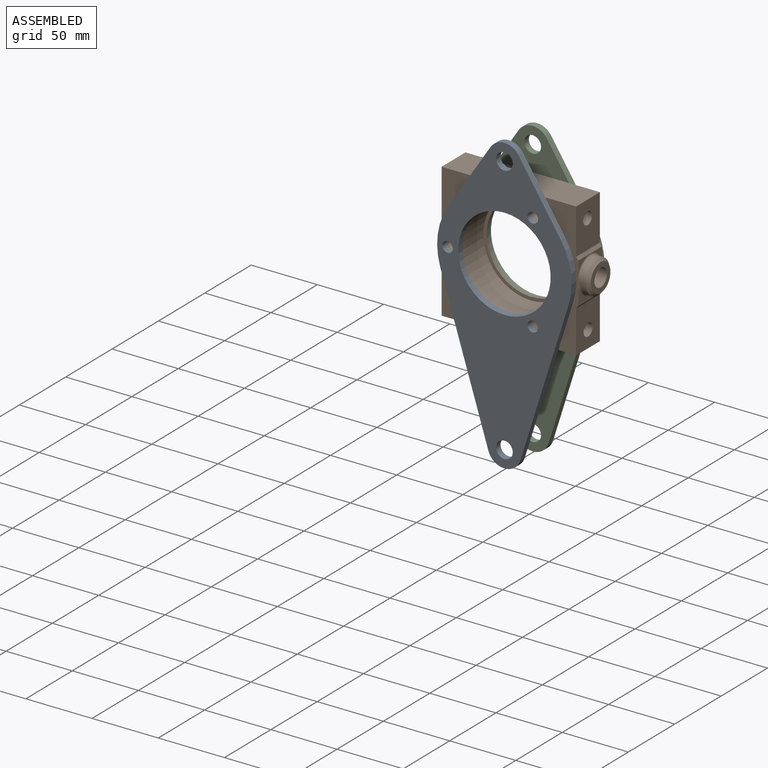
[diagram: assembled view]
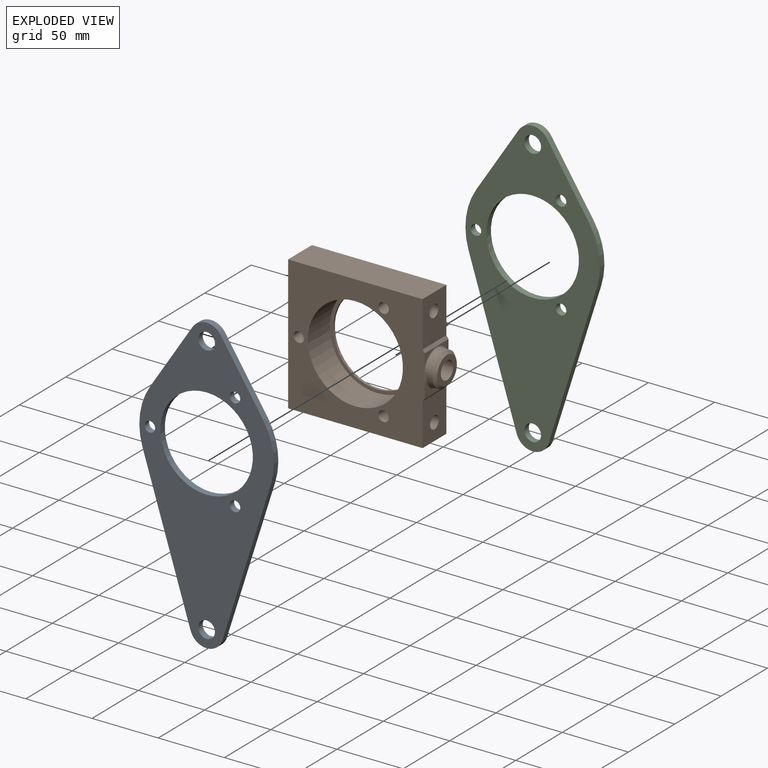
[diagram: exploded view]
GUIDED TOUR — MATED ASSEMBLY (Onshape document af3f4730a27134600b8b0b92, AutoMate assembly af3f4730a27134600b8b0b92_98c0748dc677245c911822a7_bc835501ca015cca2d89b604_default)

This assembly has 3 components, labeled P0..P2 below (a component is one placed occurrence of a part; the same part can appear more than once), held together by 2 mates. A mate is a constraint between two components; its type names the relative motion it leaves free:
  FASTENED — locks the two components together rigidly (no relative motion).
Axis/direction vectors are unit vectors and 'through' points are millimeter coordinates, both in the assembly's world frame.

MATES
  1. FASTENED "Fastened 2": P1 <-> P0, direction (0.000, -1.000, 0.000) through (3.76, -5.80, 3.15) mm
  2. FASTENED "Fastened 1": P1 <-> P2, direction (0.000, 1.000, 0.000) through (3.76, 19.85, 3.15) mm

ASSEMBLY ORDER
  1. P2 — the base component [order verified]
  2. P1 [order verified]
  3. P0 [order verified]
Order-tag legend:
  [order verified] — this step's position reverses a verified removal order: the component was checked to insert without passing through the ones already placed.

Of the 3 components, 2 carry the full construction recipe — the FeatureScript program that regenerates the part's solid from scratch; the rest are supplied as boundary geometry only.
Each toured component is shown spotlighted twice — in the assembled view, then in the exploded view, where a leader line traces a displaced component back to its assembled socket (saturated green if recipe-attached, orange if geometry-only; every other component desaturated gray) — followed by its recipe or geometry summary and the mates that hold it.
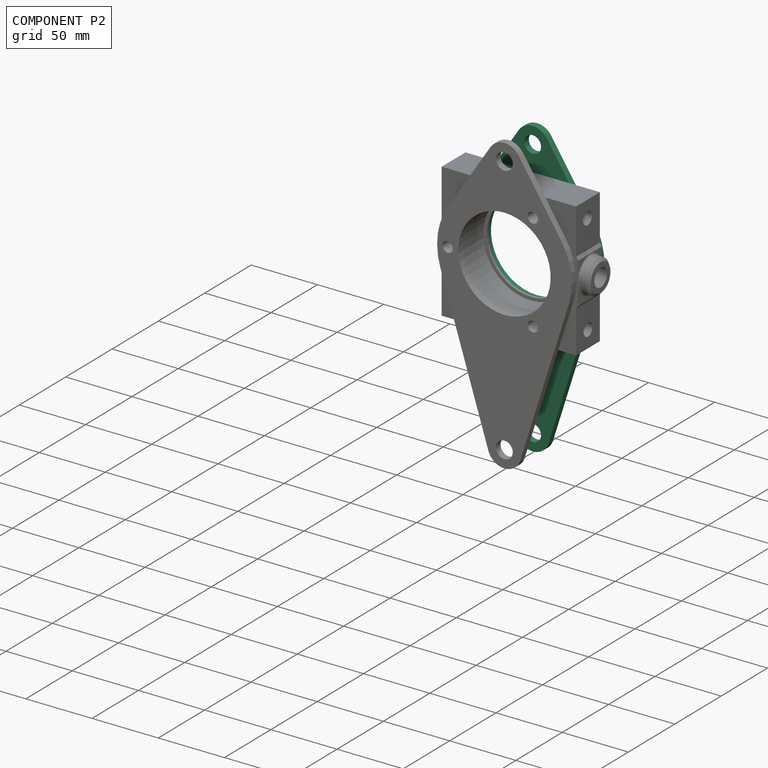
[diagram: component P2 — assembled]
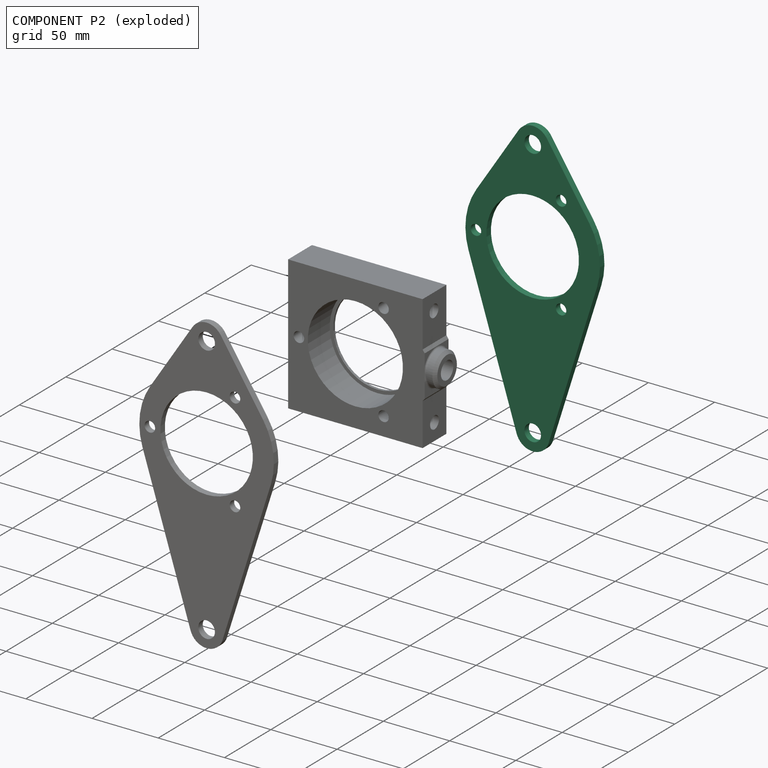
[diagram: component P2 — exploded]
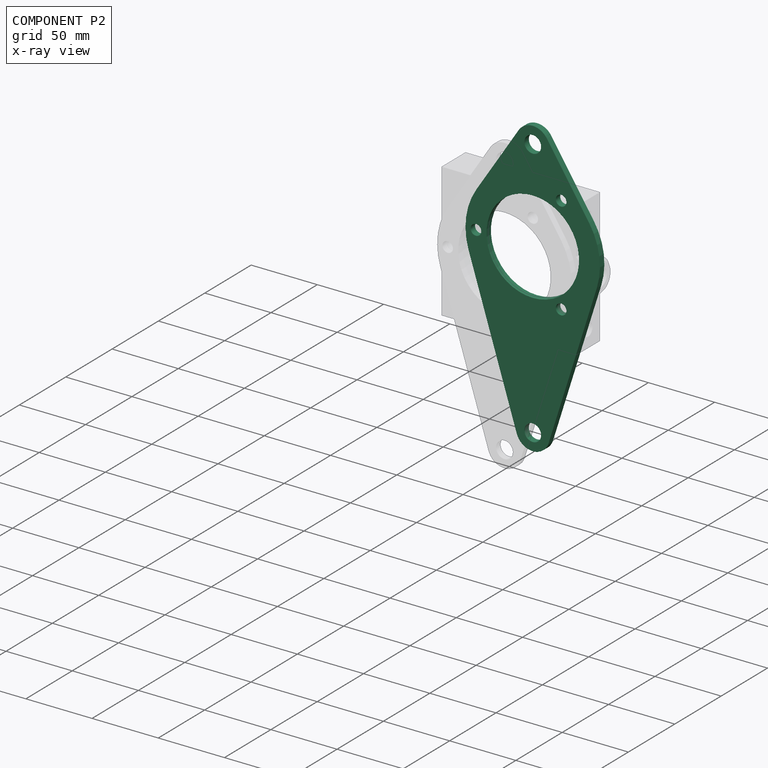
[diagram: component P2 — x-ray view]
COMPONENT P2 — same part as P0 (CADFS 00308056); its construction recipe is shown at P0.
Held by: FASTENED mate "Fastened 1" to P1.
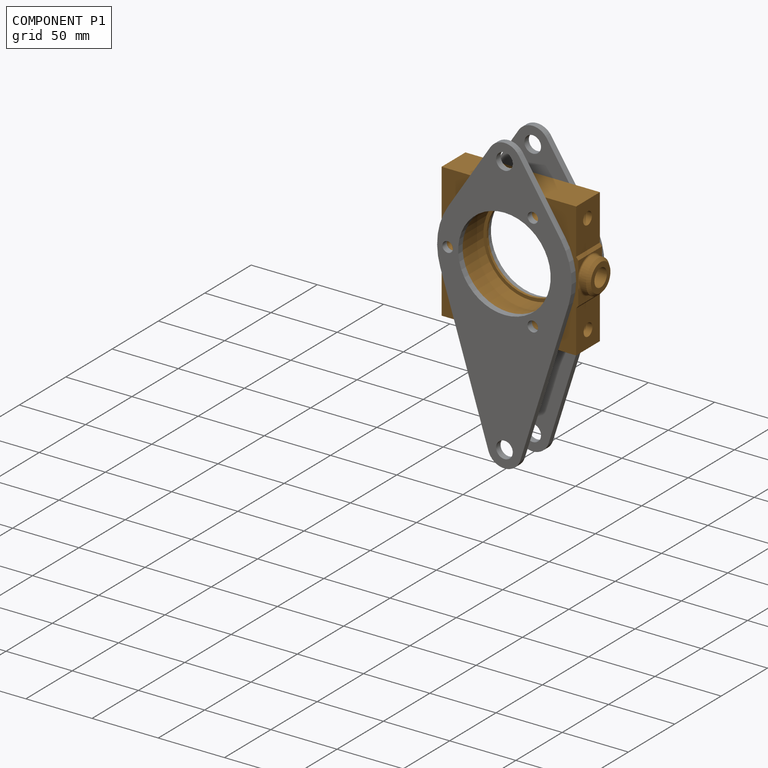
[diagram: component P1 — assembled]
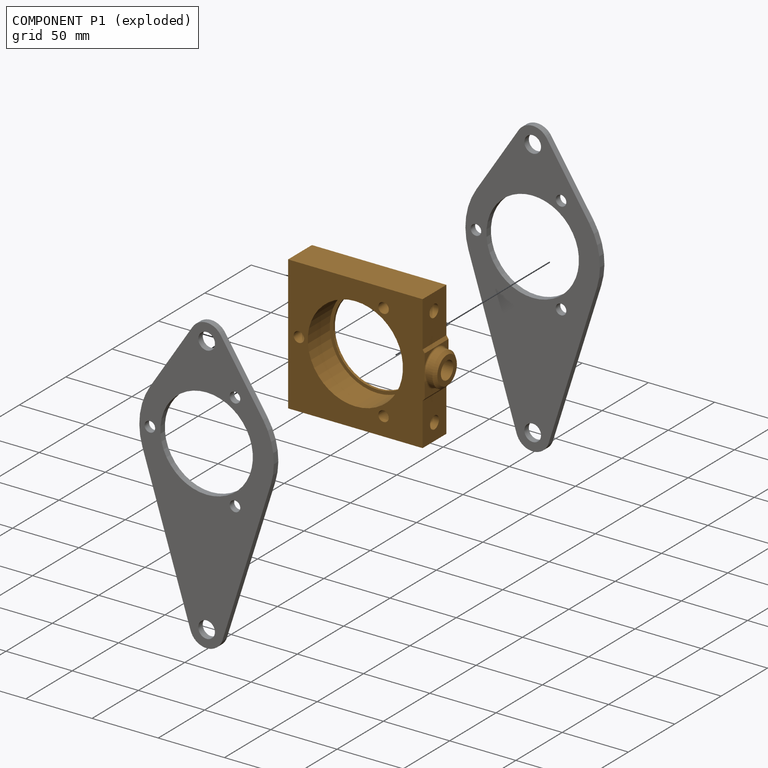
[diagram: component P1 — exploded]
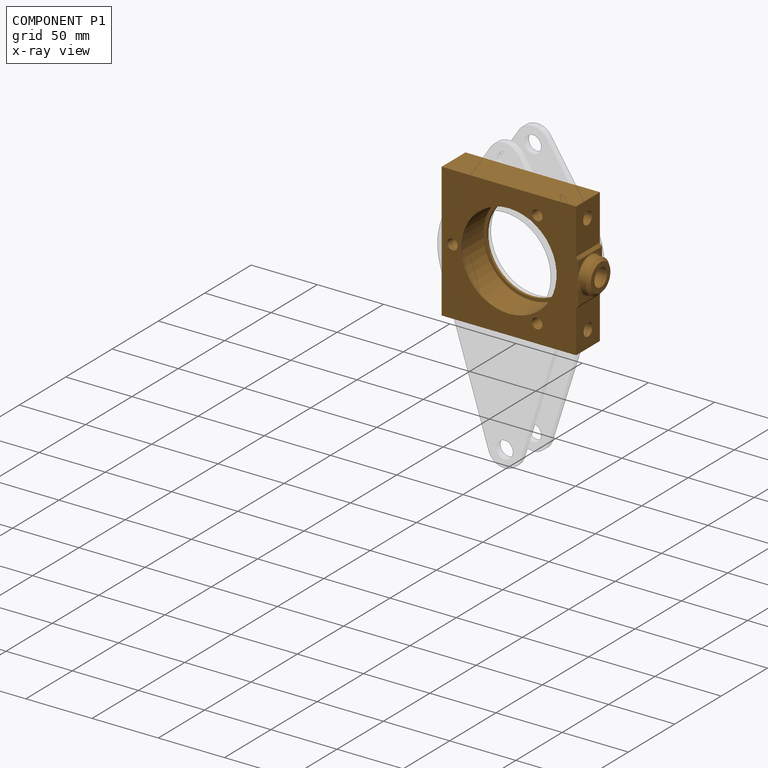
[diagram: component P1 — x-ray view]
COMPONENT P1 — geometry summary (no construction recipe available for this part):
  bounding box: 111.2 x 101.8 x 29.7 mm
  B-rep topology: 1 solid, 36 faces, 168 edges
  volume: 156027 mm^3 (46% of its bounding box)
Held by: FASTENED mate "Fastened 2" to P0; FASTENED mate "Fastened 1" to P2.
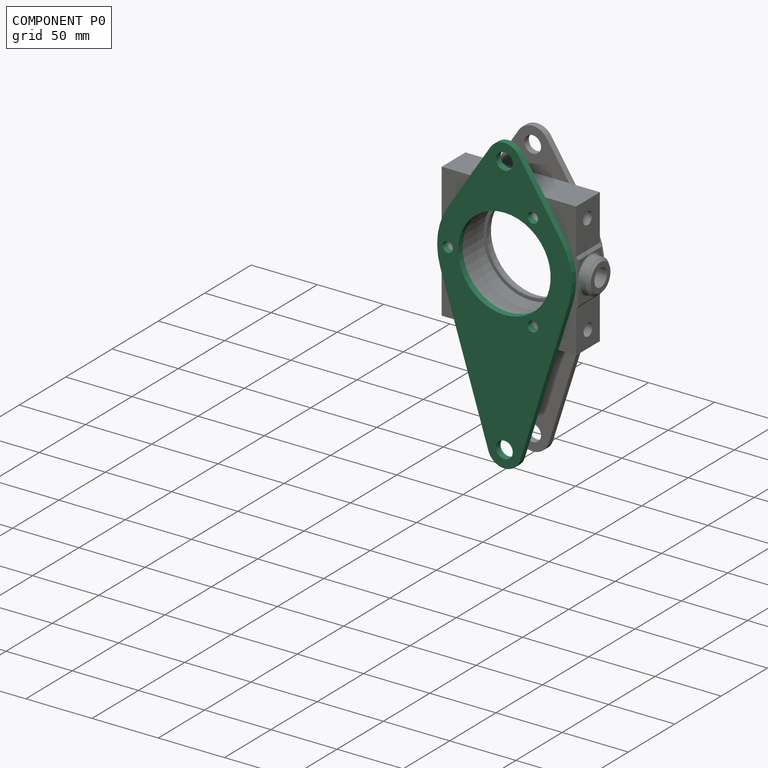
[diagram: component P0 — assembled]
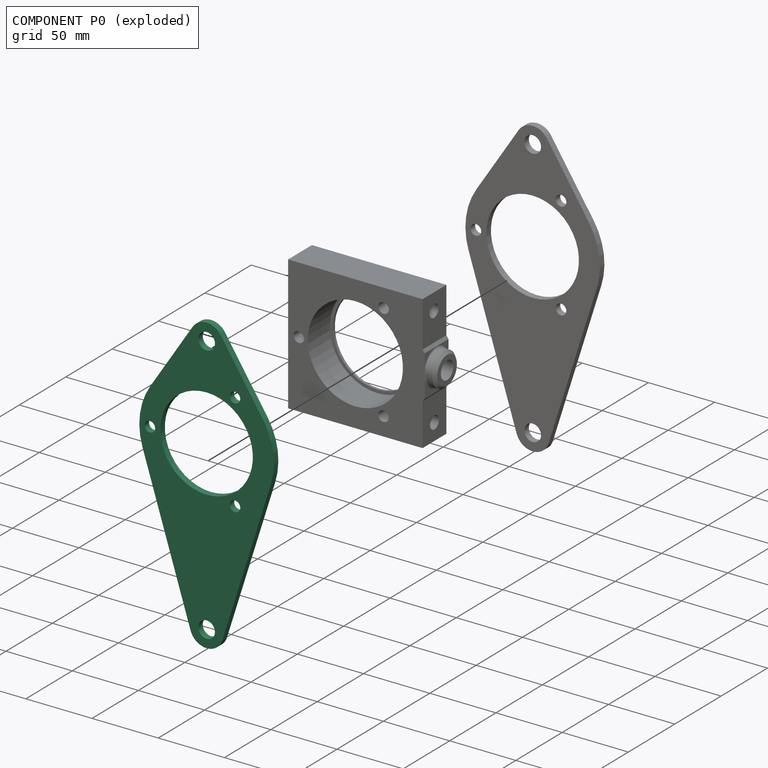
[diagram: component P0 — exploded]
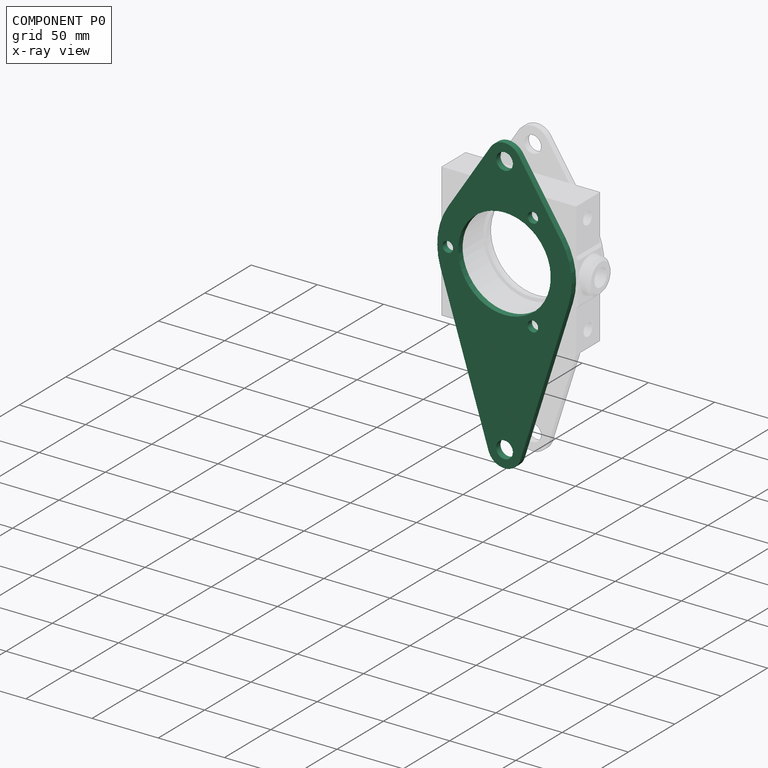
[diagram: component P0 — x-ray view]
COMPONENT P0 — recipe-attached (CADFS 00308056, mesh-verified: the recipe's output STEP matches this component's geometry to below the mesh-comparison resolution (tessellation chordal tolerance ~0.367 mm)).
Held by: FASTENED mate "Fastened 2" to P1.
Construction recipe (FeatureScript — the CAD program that rebuilds this solid; sketch coordinates are in the units given by the * unit suffixes, e.g. mm):

FeatureScript 1511;
import(path : "onshape/std/geometry.fs", version : "1511.0");
import(path : "onshape/std/common.fs", version : "1511.0");
const mm = millimeter;
const VERTEX = EntityType.VERTEX;
const EDGE = EntityType.EDGE;
const FACE = EntityType.FACE;
const BODY = EntityType.BODY;
function v(x, y){return vector(x, y);}
function OD(order){return orderDisambiguation(order);}
function OSD(set){return originalSetDisambiguation(set);}
function TD(topology){return topologyDisambiguation(topology);}
function TDD(query){return trueDependencyDisambiguation(query);}
function sQuery(a, b, c) {return sketchEntityQuery(a, b, c);}

annotation { "Feature Type Name" : "Feature", "Feature Type Description" : "" }
export const myFeature = defineFeature(function(context is Context, id is Id, definition is map)
    precondition{}
    {
        {
            var Q0;
            Q0=qCreatedBy(makeId("Front.planeOp"),FACE);
            var sketch = newSketch(context, id + "F0", { "sketchPlane" : qUnion([Q0])});
            skArc(sketch, "E0", {"start": v(10.61, 76.78) * mm, "mid": v(-0.03, 82.55) * mm, "end": v(-10.68, 76.77) * mm});
            skArc(sketch, "E1", {"start": v(-12.4, -129.73) * mm, "mid": v(-0.56, -139.69) * mm, "end": v(12.12, -130.8) * mm});
            skLineSegment(sketch, "E2", {"start": v(-12.4, -129.73) * mm, "end": v(-48.45, -15.26) * mm});
            skLineSegment(sketch, "E3", {"start": v(12.12, -130.8) * mm, "end": v(48.46, -15.24) * mm});
            skLineSegment(sketch, "E4", {"start": v(-42.59, 27.7) * mm, "end": v(-10.68, 76.77) * mm});
            skLineSegment(sketch, "E5", {"start": v(42.57, 27.73) * mm, "end": v(10.61, 76.78) * mm});
            skCircle(sketch, "E6", {"center": v(-0.03, 69.85) * mm, "radius": 6.29 * mm});
            skCircle(sketch, "E7", {"center": v(0, -127) * mm, "radius": 6.29 * mm});
            skCircle(sketch, "E8", {"center": v(42.85, 0) * mm, "radius": 3.97 * mm});
            skCircle(sketch, "E9", {"center": v(-21.42, 37.1) * mm, "radius": 3.98 * mm});
            skCircle(sketch, "E10.MirrorC", {"center": v(-21.42, -37.1) * mm, "radius": 3.98 * mm});
            skArc(sketch, "E11", {"start": v(48.46, -15.24) * mm, "mid": v(50.33, 6.9) * mm, "end": v(42.57, 27.73) * mm});
            skArc(sketch, "E12.trimOffspring", {"start": v(-42.59, 27.7) * mm, "mid": v(-50.33, 6.87) * mm, "end": v(-48.45, -15.26) * mm});
            skCircle(sketch, "E13", {"center": v(0, 0) * mm, "radius": 34.93 * mm});
            skLineSegment(sketch, "E14", {"start": v(0, 0) * mm, "end": v(-21.42, 37.1) * mm});
            skLineSegment(sketch, "E15", {"start": v(0, 0) * mm, "end": v(-21.42, -37.1) * mm});
            skSolve(sketch);
        }
        {
            var Q0;
            Q0=qSketchRegion(id+"F0",true);
            extrude(context, id + "F1", {"entities" : qUnion([Q0]), "endBound" : BoundingType.SYMMETRIC, "depth" : 4.83 * mm, "offsetDistance" : 25.4 * mm});
        }
    });
PROVENANCE & LICENSES
Assembly (occurrences, transforms, mates, per-part STEP geometry): AutoMate dataset, Zenodo record 7776208, CC0.
Construction recipes: CADFS (HuggingFace VladPyatov/CADFS, CC-BY-4.0, layered over the ABC dataset), FeatureScript reconstruction programs keyed by ABC model id.
Join: ABC meta listings map ABC model id -> Onshape documentId; within a shared document, parts are matched by geometric signature (bounding-box dims + volume at 0.1% relative tolerance, exact B-rep face/solid counts).
Verification: 2 of this assembly's 3 components carry a recipe attachment, and every attachment is mesh-verified: the CADFS STEP and the AutoMate member STEP were compared as meshes in their shared local frame (symmetric sampled-point-to-mesh distance); worst across the 2 attachments: below the mesh-comparison resolution (tessellation chordal tolerance ~0.367 mm) on a 244 mm part.
Renders: orthographic iso camera (az 35 / el 25); the floor grid conveys scale (grid pitch printed in each image; no ruler). In the exploded view each component is displaced by its stored offset vector: the offsets alone carry the explosion direction (mate normal/axis signs are not orientation cues and do not encode it), and separation distances are assigned per mate-chain, not proportionally to assembly-order depth.
